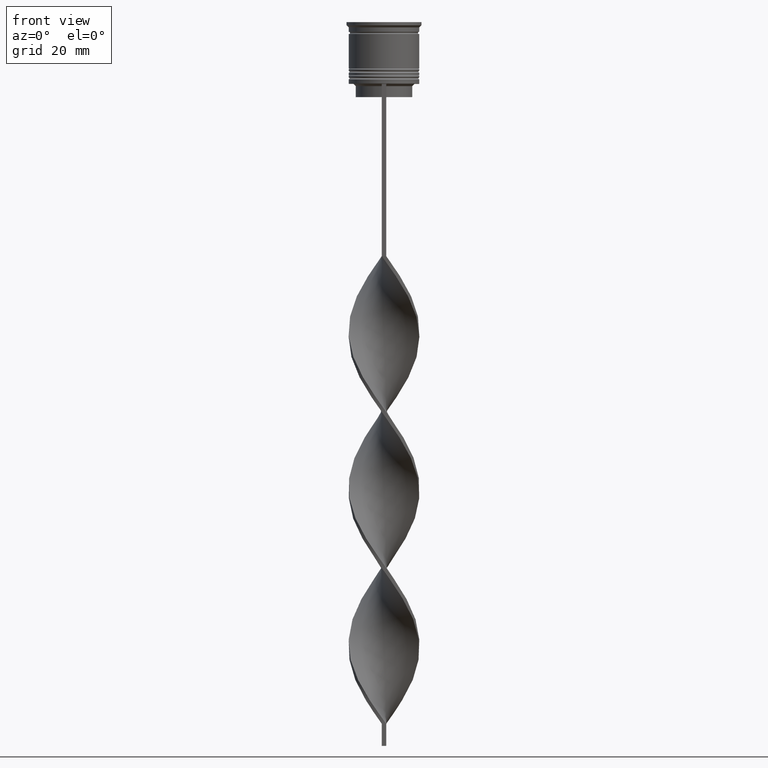
[diagram: clean part render]
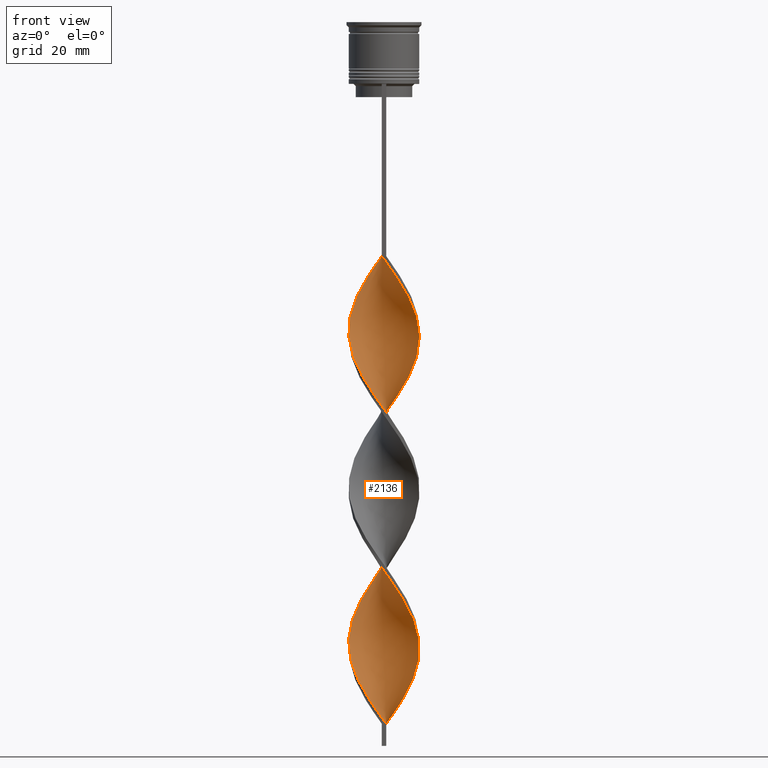
[diagram: same view with one face highlighted and labeled with its STEP entity id]
A machine part, front view. The second image highlights one B-rep face of the part: STEP entity #2136.
In plain terms, the highlighted face is a freeform B-spline surface patch.
Its self-contained STEP definition (entity closure, byte-faithful):
#7 = CARTESIAN_POINT ( 'NONE',  ( 2.963900771692545177, 7.495002038555971247, -84.79999999999998295 ) ) ;
#15 = CARTESIAN_POINT ( 'NONE',  ( -7.763755626116591202, 2.164223167868974951, -103.6444444444444457 ) ) ;
#30 = CARTESIAN_POINT ( 'NONE',  ( -0.4999999999999998890, 7.999999999999996447, -53.00000000000000000 ) ) ;
#31 = CARTESIAN_POINT ( 'NONE',  ( 5.008911780959354410, -6.314314381860031133, -131.9111111111111256 ) ) ;
#48 =( BOUNDED_CURVE ( )  B_SPLINE_CURVE ( 2, ( #30, #2619, #1235, #334, #70, #681, #967, #950, #2912, #389, #1807, #317, #2947, #2051, #2104, #1178, #350, #2387, #3189, #2334, #1513, #2654, #3212, #603, #2370, #1548, #3555, #1250, #2968, #2317, #1754, #3230, #371, #1534, #1480, #3538, #3484, #1196, #1830, #2931, #3500, #2989, #895, #626, #1773, #1496, #2635, #49, #1215, #2352, #3521, #936, #2072, #702, #2405, #1851, #3575, #991, #2129, #408, #1267, #1567, #104, #3290, #3007, #3126, #1392, #1618, #2788, #3341, #2498, #2197, #3358, #160, #787, #1060, #217, #478, #2178, #1076, #773, #3397, #232, #2529, #1655, #1918, #1091, #757, #3663, #1672, #1934 ),
 .UNSPECIFIED., .F., .T. ) 
 B_SPLINE_CURVE_WITH_KNOTS ( ( 3, 2, 2, 2, 2, 2, 2, 2, 2, 2, 2, 2, 2, 2, 2, 2, 2, 2, 2, 2, 2, 2, 2, 2, 2, 2, 2, 2, 2, 2, 2, 2, 2, 2, 2, 2, 2, 2, 2, 2, 2, 2, 2, 2, 2, 3 ),
 ( 0.000000000000000000, 0.01666666666666666644, 0.03333333333333333287, 0.05000000000000000971, 0.06666666666666666574, 0.08333333333333332871, 0.1000000000000000194, 0.1166666666666666546, 0.1333333333333333315, 0.1499999999999999944, 0.1666666666666666574, 0.1833333333333333204, 0.2000000000000000389, 0.2166666666666666741, 0.2333333333333333093, 0.2500000000000000000, 0.2666666666666666630, 0.2833333333333333259, 0.2999999999999999889, 0.3166666666666666519, 0.3333333333333333148, 0.3499999999999999223, 0.3666666666666666408, 0.3833333333333333592, 0.4000000000000000777, 0.4166666666666666852, 0.4333333333333333481, 0.4500000000000000111, 0.4666666666666666186, 0.4833333333333333370, 0.5000000000000000000, 0.5166666666666667185, 0.5333333333333333259, 0.5500000000000000444, 0.5666666666666666519, 0.5833333333333333703, 0.5999999999999999778, 0.6166666666666666963, 0.6333333333333333037, 0.6500000000000000222, 0.6666666666666666297, 0.6833333333333332371, 0.6999999999999998446, 0.7166666666666666741, 0.7333333333333332815, 0.7500000000000000000 ),
 .UNSPECIFIED. ) 
 CURVE ( )  GEOMETRIC_REPRESENTATION_ITEM ( )  RATIONAL_B_SPLINE_CURVE ( ( 1.000000000000000000, 0.9945218953682732899, 1.000000000000000000, 0.9945218953682732899, 1.000000000000000000, 0.9945218953682732899, 1.000000000000000000, 0.9945218953682732899, 1.000000000000000000, 0.9945218953682732899, 1.000000000000000000, 0.9945218953682732899, 1.000000000000000000, 0.9945218953682732899, 1.000000000000000000, 0.9945218953682732899, 1.000000000000000000, 0.9945218953682732899, 1.000000000000000000, 0.9945218953682732899, 1.000000000000000000, 0.9945218953682732899, 1.000000000000000000, 0.9945218953682732899, 1.000000000000000000, 0.9945218953682732899, 1.000000000000000000, 0.9945218953682732899, 1.000000000000000000, 0.9945218953682732899, 1.000000000000000000, 0.9945218953682732899, 1.000000000000000000, 0.9945218953682732899, 1.000000000000000000, 0.9945218953682732899, 1.000000000000000000, 0.9945218953682732899, 1.000000000000000000, 0.9945218953682732899, 1.000000000000000000, 0.9945218953682732899, 1.000000000000000000, 0.9945218953682732899, 1.000000000000000000, 0.9945218953682732899, 1.000000000000000000, 0.9945218953682732899, 1.000000000000000000, 0.9945218953682732899, 1.000000000000000000, 0.9945218953682732899, 1.000000000000000000, 0.9945218953682732899, 1.000000000000000000, 0.9945218953682732899, 1.000000000000000000, 0.9945218953682732899, 1.000000000000000000, 0.9945218953682732899, 1.000000000000000000, 0.9945218953682732899, 1.000000000000000000, 0.9945218953682732899, 1.000000000000000000, 0.9945218953682732899, 1.000000000000000000, 0.9945218953682732899, 1.000000000000000000, 0.9945218953682732899, 1.000000000000000000, 0.9945218953682732899, 1.000000000000000000, 0.9945218953682732899, 1.000000000000000000, 0.9945218953682732899, 1.000000000000000000, 0.9945218953682732899, 1.000000000000000000, 0.9945218953682732899, 1.000000000000000000, 0.9945218953682732899, 1.000000000000000000, 0.9945218953682732899, 1.000000000000000000, 0.9945218953682732899, 1.000000000000000000, 0.9945218953682732899, 1.000000000000000000, 0.9945218953682732899, 1.000000000000000000 ) ) 
 REPRESENTATION_ITEM ( '' )  );
#49 = CARTESIAN_POINT ( 'NONE',  ( 7.763755626116586761, 2.164223167868963404, -108.3555555555555543 ) ) ;
#70 = CARTESIAN_POINT ( 'NONE',  ( -3.710665873427700490, 7.104995339602903748, -57.71111111111110858 ) ) ;
#104 = CARTESIAN_POINT ( 'NONE',  ( -2.152367326908976697, 7.721224960461563036, -126.0222222222222257 ) ) ;
#105 = CARTESIAN_POINT ( 'NONE',  ( 4.457430975162866460, 6.714988640649846019, -153.1111111111111143 ) ) ;
#106 = CARTESIAN_POINT ( 'NONE',  ( -7.903910931312363886, 1.333488653825370962, -104.8222222222222229 ) ) ;
#128 = CARTESIAN_POINT ( 'NONE',  ( -6.803297758105507853, 4.321446859207494384, -63.60000000000000853 ) ) ;
#150 = CARTESIAN_POINT ( 'NONE',  ( -6.678203230275511437, 4.433012701892224072, -100.1111111111111143 ) ) ;
#160 = CARTESIAN_POINT ( 'NONE',  ( -7.972812552651890705, 1.180687656695940779, -138.9777777777777885 ) ) ;
#169 = CARTESIAN_POINT ( 'NONE',  ( 5.610593300639727055, -5.724617263609565576, -133.0888888888889028 ) ) ;
#173 = CARTESIAN_POINT ( 'NONE',  ( 0.3408338821254121020, -8.052552117632842510, -54.17777777777777715 ) ) ;
#189 = CARTESIAN_POINT ( 'NONE',  ( -7.144131640230920510, 3.731105258425349014, -101.2888888888888914 ) ) ;
#217 = CARTESIAN_POINT ( 'NONE',  ( -7.903910931312356780, -1.333488653825362746, -142.5111111111111200 ) ) ;
#219 = CARTESIAN_POINT ( 'NONE',  ( 5.106790515527261931, 6.178243328853344707, -81.26666666666666572 ) ) ;
#228 = CARTESIAN_POINT ( 'NONE',  ( 0.3408338821254181528, 8.052552117632835404, -122.4888888888888800 ) ) ;
#232 = CARTESIAN_POINT ( 'NONE',  ( -5.610593300639724390, -5.724617263609558471, -149.5777777777777828 ) ) ;
#243 = CARTESIAN_POINT ( 'NONE',  ( 3.586635261345271886, -7.217742780431606775, -58.88888888888888573 ) ) ;
#246 = CARTESIAN_POINT ( 'NONE',  ( -3.710665873427700490, 7.104995339602903748, -128.3777777777777942 ) ) ;
#263 = CARTESIAN_POINT ( 'NONE',  ( -0.4999999999999998890, -8.000000000000003553, -123.6666666666666714 ) ) ;
#265 = CARTESIAN_POINT ( 'NONE',  ( 7.178203230275505220, -3.566987298107782589, -100.1111111111111143 ) ) ;
#274 = CARTESIAN_POINT ( 'NONE',  ( 8.044066236508134793, -0.5027541397817586466, -70.66666666666667140 ) ) ;
#280 = CARTESIAN_POINT ( 'NONE',  ( 6.803297758105513182, 4.321446859207497937, -148.4000000000000057 ) ) ;
#283 = CARTESIAN_POINT ( 'NONE',  ( 6.678203230275510549, 4.433012701892212526, -111.8888888888888999 ) ) ;
#290 = CARTESIAN_POINT ( 'NONE',  ( 0.5000000000000008882, 8.000000000000003553, -88.33333333333332860 ) ) ;
#297 = CARTESIAN_POINT ( 'NONE',  ( 6.212274820320101476, -5.134920145359100019, -134.2666666666666515 ) ) ;
#300 = CARTESIAN_POINT ( 'NONE',  ( -7.453943633173752303, -2.947664213147154655, -74.20000000000000284 ) ) ;
#317 = CARTESIAN_POINT ( 'NONE',  ( -7.553108702445505251, 2.812527737008064577, -65.95555555555556282 ) ) ;
#318 = CARTESIAN_POINT ( 'NONE',  ( -7.178203230275514990, -3.566987298107776816, -111.8888888888888999 ) ) ;
#334 = CARTESIAN_POINT ( 'NONE',  ( -2.963900771692542069, 7.495002038555965029, -56.53333333333332433 ) ) ;
#335 = CARTESIAN_POINT ( 'NONE',  ( -5.106790515527262819, -6.178243328853344707, -116.6000000000000085 ) ) ;
#338 = CARTESIAN_POINT ( 'NONE',  ( -3.586635261345270997, -7.217742780431598781, -153.1111111111110858 ) ) ;
#350 = CARTESIAN_POINT ( 'NONE',  ( -7.903910931312356780, -1.333488653825362746, -71.84444444444444855 ) ) ;
#371 = CARTESIAN_POINT ( 'NONE',  ( 2.152367326908974476, -7.721224960461563036, -90.68888888888888289 ) ) ;
#389 = CARTESIAN_POINT ( 'NONE',  ( -6.803297758105507853, 4.321446859207494384, -63.60000000000000142 ) ) ;
#392 = CARTESIAN_POINT ( 'NONE',  ( -7.972812552651898699, -1.180687656695935006, -108.3555555555555543 ) ) ;
#406 = CARTESIAN_POINT ( 'NONE',  ( -5.610593300639724390, -5.724617263609558471, -149.5777777777777828 ) ) ;
#408 = CARTESIAN_POINT ( 'NONE',  ( 0.3408338821254181528, 8.052552117632835404, -122.4888888888888800 ) ) ;
#410 = CARTESIAN_POINT ( 'NONE',  ( -5.106790515527257490, 6.178243328853340266, -60.06666666666666288 ) ) ;
#432 = CARTESIAN_POINT ( 'NONE',  ( -7.553108702445506140, 2.812527737008064133, -65.95555555555556282 ) ) ;
#444 = ORIENTED_EDGE ( 'NONE', *, *, #519, .F. ) ;
#452 = CARTESIAN_POINT ( 'NONE',  ( -7.762960627548706860, -1.996607696852001901, -109.5333333333333456 ) ) ;
#463 =( BOUNDED_SURFACE ( )  B_SPLINE_SURFACE ( 1, 2, ( 
 ( #3422, #1640, #834, #2811, #538, #1691, #2848, #2555, #1078, #1132, #2868, #3440, #1990, #561, #2214, #274, #1433, #3738, #1149, #775, #3377, #1939, #3095, #1656, #219, #1378, #2514, #7, #1452, #3168, #290, #580, #1728, #2883, #2291, #2594, #3460, #875, #2012, #744, #150, #189, #3579, #1029, #106, #1892, #3049, #392, #452, #993, #2131, #2165, #1292, #3328, #1624, #1907, #1609, #1269, #1350, #2759, #2409, #1311, #3010, #3062, #2107, #1592, #3349, #1551, #169, #470, #1010, #3598, #2148, #3028, #683, #2775, #3616, #2446, #2739, #1328, #2187, #2694, #1871, #2465, #3293, #3272, #3634, #3653, #3308, #2487, #1048 ),
 ( #1833, #704, #763, #2430, #2992, #1854, #410, #1569, #2716, #128, #721, #432, #3731, #1983, #1442, #3433, #550, #2891, #300, #1951, #2546, #827, #1465, #2248, #2524, #1704, #513, #1388, #807, #588, #3471, #883, #1667, #3674, #2282, #1088, #1410, #2226, #2860, #864, #265, #1969, #1736, #3106, #2583, #2837, #3749, #3391, #1107, #3694, #283, #1142, #3413, #1720, #3123, #3714, #531, #2021, #2821, #228, #1683, #1162, #3449, #2002, #246, #1426, #1124, #2265, #844, #3138, #2564, #3160, #572, #2875, #2304, #3176, #2934, #898, #3573, #2055, #3288, #2127, #406, #3305, #1182, #338, #1025, #988, #1499, #717, #3192 ) ),
 .UNSPECIFIED., .F., .F., .F. ) 
 B_SPLINE_SURFACE_WITH_KNOTS ( ( 2, 2 ),
 ( 3, 2, 2, 2, 2, 2, 2, 2, 2, 2, 2, 2, 2, 2, 2, 2, 2, 2, 2, 2, 2, 2, 2, 2, 2, 2, 2, 2, 2, 2, 2, 2, 2, 2, 2, 2, 2, 2, 2, 2, 2, 2, 2, 2, 2, 3 ),
 ( 0.000000000000000000, 1.000000000000000000 ),
 ( 0.000000000000000000, 0.01666666666666666644, 0.03333333333333333287, 0.05000000000000000278, 0.06666666666666666574, 0.08333333333333332871, 0.1000000000000000056, 0.1166666666666666685, 0.1333333333333333315, 0.1499999999999999944, 0.1666666666666666574, 0.1833333333333333204, 0.2000000000000000111, 0.2166666666666666741, 0.2333333333333333370, 0.2500000000000000000, 0.2666666666666666630, 0.2833333333333333259, 0.2999999999999999889, 0.3166666666666666519, 0.3333333333333333148, 0.3499999999999999778, 0.3666666666666666408, 0.3833333333333333592, 0.4000000000000000222, 0.4166666666666666852, 0.4333333333333333481, 0.4500000000000000111, 0.4666666666666666741, 0.4833333333333333370, 0.5000000000000000000, 0.5166666666666667185, 0.5333333333333333259, 0.5500000000000000444, 0.5666666666666666519, 0.5833333333333333703, 0.5999999999999999778, 0.6166666666666666963, 0.6333333333333333037, 0.6500000000000000222, 0.6666666666666666297, 0.6833333333333333481, 0.6999999999999999556, 0.7166666666666666741, 0.7333333333333332815, 0.7500000000000000000 ),
 .UNSPECIFIED. ) 
 GEOMETRIC_REPRESENTATION_ITEM ( )  RATIONAL_B_SPLINE_SURFACE ( (
 ( 1.000000000000000000, 0.9945218953682732899, 1.000000000000000000, 0.9945218953682732899, 1.000000000000000000, 0.9945218953682732899, 1.000000000000000000, 0.9945218953682732899, 1.000000000000000000, 0.9945218953682732899, 1.000000000000000000, 0.9945218953682732899, 1.000000000000000000, 0.9945218953682732899, 1.000000000000000000, 0.9945218953682732899, 1.000000000000000000, 0.9945218953682732899, 1.000000000000000000, 0.9945218953682732899, 1.000000000000000000, 0.9945218953682732899, 1.000000000000000000, 0.9945218953682732899, 1.000000000000000000, 0.9945218953682732899, 1.000000000000000000, 0.9945218953682732899, 1.000000000000000000, 0.9945218953682732899, 1.000000000000000000, 0.9945218953682732899, 1.000000000000000000, 0.9945218953682732899, 1.000000000000000000, 0.9945218953682732899, 1.000000000000000000, 0.9945218953682732899, 1.000000000000000000, 0.9945218953682732899, 1.000000000000000000, 0.9945218953682732899, 1.000000000000000000, 0.9945218953682732899, 1.000000000000000000, 0.9945218953682732899, 1.000000000000000000, 0.9945218953682732899, 1.000000000000000000, 0.9945218953682732899, 1.000000000000000000, 0.9945218953682732899, 1.000000000000000000, 0.9945218953682732899, 1.000000000000000000, 0.9945218953682732899, 1.000000000000000000, 0.9945218953682732899, 1.000000000000000000, 0.9945218953682732899, 1.000000000000000000, 0.9945218953682732899, 1.000000000000000000, 0.9945218953682732899, 1.000000000000000000, 0.9945218953682732899, 1.000000000000000000, 0.9945218953682732899, 1.000000000000000000, 0.9945218953682732899, 1.000000000000000000, 0.9945218953682732899, 1.000000000000000000, 0.9945218953682732899, 1.000000000000000000, 0.9945218953682732899, 1.000000000000000000, 0.9945218953682732899, 1.000000000000000000, 0.9945218953682732899, 1.000000000000000000, 0.9945218953682732899, 1.000000000000000000, 0.9945218953682732899, 1.000000000000000000, 0.9945218953682732899, 1.000000000000000000, 0.9945218953682732899, 1.000000000000000000, 0.9945218953682732899, 1.000000000000000000),
 ( 1.000000000000000000, 0.9945218953682732899, 1.000000000000000000, 0.9945218953682732899, 1.000000000000000000, 0.9945218953682732899, 1.000000000000000000, 0.9945218953682732899, 1.000000000000000000, 0.9945218953682732899, 1.000000000000000000, 0.9945218953682732899, 1.000000000000000000, 0.9945218953682732899, 1.000000000000000000, 0.9945218953682732899, 1.000000000000000000, 0.9945218953682732899, 1.000000000000000000, 0.9945218953682732899, 1.000000000000000000, 0.9945218953682732899, 1.000000000000000000, 0.9945218953682732899, 1.000000000000000000, 0.9945218953682732899, 1.000000000000000000, 0.9945218953682732899, 1.000000000000000000, 0.9945218953682732899, 1.000000000000000000, 0.9945218953682732899, 1.000000000000000000, 0.9945218953682732899, 1.000000000000000000, 0.9945218953682732899, 1.000000000000000000, 0.9945218953682732899, 1.000000000000000000, 0.9945218953682732899, 1.000000000000000000, 0.9945218953682732899, 1.000000000000000000, 0.9945218953682732899, 1.000000000000000000, 0.9945218953682732899, 1.000000000000000000, 0.9945218953682732899, 1.000000000000000000, 0.9945218953682732899, 1.000000000000000000, 0.9945218953682732899, 1.000000000000000000, 0.9945218953682732899, 1.000000000000000000, 0.9945218953682732899, 1.000000000000000000, 0.9945218953682732899, 1.000000000000000000, 0.9945218953682732899, 1.000000000000000000, 0.9945218953682732899, 1.000000000000000000, 0.9945218953682732899, 1.000000000000000000, 0.9945218953682732899, 1.000000000000000000, 0.9945218953682732899, 1.000000000000000000, 0.9945218953682732899, 1.000000000000000000, 0.9945218953682732899, 1.000000000000000000, 0.9945218953682732899, 1.000000000000000000, 0.9945218953682732899, 1.000000000000000000, 0.9945218953682732899, 1.000000000000000000, 0.9945218953682732899, 1.000000000000000000, 0.9945218953682732899, 1.000000000000000000, 0.9945218953682732899, 1.000000000000000000, 0.9945218953682732899, 1.000000000000000000, 0.9945218953682732899, 1.000000000000000000, 0.9945218953682732899, 1.000000000000000000) ) ) 
 REPRESENTATION_ITEM ( '' )  SURFACE ( )  );
#470 = CARTESIAN_POINT ( 'NONE',  ( 6.212274820320101476, -5.134920145359099131, -134.2666666666666231 ) ) ;
#478 = CARTESIAN_POINT ( 'NONE',  ( -7.763755626116585873, -2.164223167868968734, -143.6888888888888971 ) ) ;
#513 = CARTESIAN_POINT ( 'NONE',  ( -2.797120415785101954, -7.511731982678703012, -83.62222222222222001 ) ) ;
#519 = EDGE_CURVE ( 'NONE', #3421, #826, #2124, .T. ) ;
#531 = CARTESIAN_POINT ( 'NONE',  ( 2.797120415785105951, 7.511731982678701236, -118.9555555555555628 ) ) ;
#538 = CARTESIAN_POINT ( 'NONE',  ( 2.797120415785102399, -7.511731982678711006, -57.71111111111110858 ) ) ;
#545 = CARTESIAN_POINT ( 'NONE',  ( 7.178203230275513214, 3.566987298107780813, -76.55555555555555713 ) ) ;
#550 = CARTESIAN_POINT ( 'NONE',  ( -7.903910931312356780, -1.333488653825362746, -71.84444444444444855 ) ) ;
#561 = CARTESIAN_POINT ( 'NONE',  ( 7.763755626116591202, -2.164223167868972286, -68.31111111111111711 ) ) ;
#569 = CARTESIAN_POINT ( 'NONE',  ( 7.762960627548706860, 1.996607696852002789, -74.20000000000000284 ) ) ;
#572 = CARTESIAN_POINT ( 'NONE',  ( -7.762960627548698866, 1.996607696852001457, -137.8000000000000114 ) ) ;
#580 = CARTESIAN_POINT ( 'NONE',  ( -0.3408338821254087714, 8.052552117632844286, -89.51111111111111995 ) ) ;
#586 = CARTESIAN_POINT ( 'NONE',  ( 2.963900771692545177, 7.495002038555971247, -84.79999999999998295 ) ) ;
#588 = CARTESIAN_POINT ( 'NONE',  ( -0.3408338821254136564, -8.052552117632835404, -87.15555555555553724 ) ) ;
#603 = CARTESIAN_POINT ( 'NONE',  ( -5.008911780959351745, -6.314314381860024028, -80.08888888888888857 ) ) ;
#604 = CARTESIAN_POINT ( 'NONE',  ( 0.3408338821254121020, -8.052552117632842510, -124.8444444444444343 ) ) ;
#626 = CARTESIAN_POINT ( 'NONE',  ( 7.972812552651890705, -1.180687656695943444, -103.6444444444444457 ) ) ;
#627 = CARTESIAN_POINT ( 'NONE',  ( -0.3408338821254087714, 8.052552117632844286, -89.51111111111110574 ) ) ;
#681 = CARTESIAN_POINT ( 'NONE',  ( -4.457430975162859355, 6.714988640649843354, -58.88888888888888573 ) ) ;
#683 = CARTESIAN_POINT ( 'NONE',  ( 7.903910931312363886, -1.333488653825366521, -140.1555555555555657 ) ) ;
#702 = CARTESIAN_POINT ( 'NONE',  ( 5.008911780959355298, 6.314314381860021363, -115.4222222222222314 ) ) ;
#704 = CARTESIAN_POINT ( 'NONE',  ( -1.340833882125411103, 7.947447882367156602, -54.17777777777777715 ) ) ;
#717 = CARTESIAN_POINT ( 'NONE',  ( -0.3408338821254136564, -8.052552117632835404, -157.8222222222221660 ) ) ;
#721 = CARTESIAN_POINT ( 'NONE',  ( -7.178203230275506108, 3.566987298107779925, -64.77777777777778567 ) ) ;
#744 = CARTESIAN_POINT ( 'NONE',  ( -6.212274820320100588, 5.134920145359100019, -98.93333333333332291 ) ) ;
#757 = CARTESIAN_POINT ( 'NONE',  ( -2.007605570224932023, -7.805721184925808132, -155.4666666666666686 ) ) ;
#763 = CARTESIAN_POINT ( 'NONE',  ( -2.152367326908976697, 7.721224960461563036, -55.35555555555555429 ) ) ;
#767 = CARTESIAN_POINT ( 'NONE',  ( 7.903910931312363886, -1.333488653825366521, -69.48888888888889426 ) ) ;
#771 = ORIENTED_EDGE ( 'NONE', *, *, #1191, .F. ) ;
#773 = CARTESIAN_POINT ( 'NONE',  ( -6.678203230275506996, -4.433012701892216079, -147.2222222222222285 ) ) ;
#775 = CARTESIAN_POINT ( 'NONE',  ( 7.553108702445513245, 2.812527737008064577, -75.37777777777777999 ) ) ;
#783 = CARTESIAN_POINT ( 'NONE',  ( 1.174219726175172562, -7.929136651279328873, -55.35555555555555429 ) ) ;
#787 = CARTESIAN_POINT ( 'NONE',  ( -8.008439394580010529, 0.3389667584570925096, -140.1555555555555657 ) ) ;
#807 = CARTESIAN_POINT ( 'NONE',  ( -1.174219726175174561, -7.929136651279319992, -85.97777777777777430 ) ) ;
#826 = VERTEX_POINT ( 'NONE', #3405 ) ;
#827 = CARTESIAN_POINT ( 'NONE',  ( -6.212274820320096147, -5.134920145359094690, -77.73333333333333428 ) ) ;
#834 = CARTESIAN_POINT ( 'NONE',  ( 1.174219726175172562, -7.929136651279328873, -55.35555555555555429 ) ) ;
#842 = CARTESIAN_POINT ( 'NONE',  ( 7.453943633173757632, -2.947664213147156875, -137.8000000000000114 ) ) ;
#844 = CARTESIAN_POINT ( 'NONE',  ( -6.279723906998579963, 4.981472438132166225, -133.0888888888889028 ) ) ;
#860 = CARTESIAN_POINT ( 'NONE',  ( 7.972812552651897811, 1.180687656695939447, -143.6888888888888971 ) ) ;
#864 = CARTESIAN_POINT ( 'NONE',  ( 6.803297758105506965, -4.321446859207495272, -98.93333333333332291 ) ) ;
#875 = CARTESIAN_POINT ( 'NONE',  ( -5.008911780959350857, 6.314314381860031133, -96.57777777777775441 ) ) ;
#880 = CARTESIAN_POINT ( 'NONE',  ( -0.4999999999999998890, 7.999999999999996447, -53.00000000000000000 ) ) ;
#881 = CARTESIAN_POINT ( 'NONE',  ( 7.762960627548706860, 1.996607696852002789, -144.8666666666666742 ) ) ;
#883 = CARTESIAN_POINT ( 'NONE',  ( 1.340833882125408216, -7.947447882367158378, -89.51111111111111995 ) ) ;
#895 = CARTESIAN_POINT ( 'NONE',  ( 7.762960627548698866, -1.996607696852002345, -102.4666666666666686 ) ) ;
#896 = CARTESIAN_POINT ( 'NONE',  ( -3.710665873427708927, -7.104995339602907301, -118.9555555555555628 ) ) ;
#898 = CARTESIAN_POINT ( 'NONE',  ( -7.763755626116584985, -2.164223167868968734, -143.6888888888888971 ) ) ;
#913 = CARTESIAN_POINT ( 'NONE',  ( 2.007605570224933356, -7.805721184925815237, -127.2000000000000028 ) ) ;
#936 = CARTESIAN_POINT ( 'NONE',  ( 6.212274820320097035, 5.134920145359093802, -113.0666666666666629 ) ) ;
#950 = CARTESIAN_POINT ( 'NONE',  ( -5.756150055891653849, 5.641498017056839842, -61.24444444444443292 ) ) ;
#967 = CARTESIAN_POINT ( 'NONE',  ( -5.106790515527257490, 6.178243328853340266, -60.06666666666666288 ) ) ;
#988 = CARTESIAN_POINT ( 'NONE',  ( -2.007605570224932023, -7.805721184925808132, -155.4666666666666686 ) ) ;
#991 = CARTESIAN_POINT ( 'NONE',  ( 2.007605570224933356, 7.805721184925808132, -120.1333333333333400 ) ) ;
#992 = CARTESIAN_POINT ( 'NONE',  ( 0.5000000000000008882, 8.000000000000003553, -159.0000000000000000 ) ) ;
#993 = CARTESIAN_POINT ( 'NONE',  ( -7.553108702445514133, -2.812527737008061912, -110.7111111111110944 ) ) ;
#1010 = CARTESIAN_POINT ( 'NONE',  ( 6.678203230275512325, -4.433012701892221408, -135.4444444444444571 ) ) ;
#1025 = CARTESIAN_POINT ( 'NONE',  ( -2.797120415785101954, -7.511731982678703012, -154.2888888888888914 ) ) ;
#1029 = CARTESIAN_POINT ( 'NONE',  ( -7.763755626116591202, 2.164223167868974951, -103.6444444444444457 ) ) ;
#1048 = CARTESIAN_POINT ( 'NONE',  ( 0.5000000000000008882, 8.000000000000003553, -159.0000000000000000 ) ) ;
#1054 = CARTESIAN_POINT ( 'NONE',  ( 6.678203230275512325, -4.433012701892221408, -64.77777777777778567 ) ) ;
#1056 = CARTESIAN_POINT ( 'NONE',  ( 0.5000000000000008882, 8.000000000000003553, -159.0000000000000000 ) ) ;
#1060 = CARTESIAN_POINT ( 'NONE',  ( -8.044066236508127687, -0.5027541397817575364, -141.3333333333333428 ) ) ;
#1076 = CARTESIAN_POINT ( 'NONE',  ( -7.144131640230919622, -3.731105258425339244, -146.0444444444444230 ) ) ;
#1078 = CARTESIAN_POINT ( 'NONE',  ( 5.610593300639727055, -5.724617263609565576, -62.42222222222221717 ) ) ;
#1088 = CARTESIAN_POINT ( 'NONE',  ( 4.457430975162857578, -6.714988640649844243, -94.22222222222221433 ) ) ;
#1091 = CARTESIAN_POINT ( 'NONE',  ( -2.797120415785101954, -7.511731982678703012, -154.2888888888888914 ) ) ;
#1107 = CARTESIAN_POINT ( 'NONE',  ( 7.453943633173752303, 2.947664213147153767, -109.5333333333333456 ) ) ;
#1121 = CARTESIAN_POINT ( 'NONE',  ( 1.174219726175172562, -7.929136651279328873, -126.0222222222222257 ) ) ;
#1124 = CARTESIAN_POINT ( 'NONE',  ( -5.106790515527257490, 6.178243328853340266, -130.7333333333333485 ) ) ;
#1132 = CARTESIAN_POINT ( 'NONE',  ( 6.212274820320101476, -5.134920145359099131, -63.60000000000000853 ) ) ;
#1140 = CARTESIAN_POINT ( 'NONE',  ( 5.610593300639727055, -5.724617263609565576, -133.0888888888889028 ) ) ;
#1142 = CARTESIAN_POINT ( 'NONE',  ( 6.212274820320097035, 5.134920145359093802, -113.0666666666666487 ) ) ;
#1149 = CARTESIAN_POINT ( 'NONE',  ( 7.762960627548706860, 1.996607696852002789, -74.20000000000000284 ) ) ;
#1157 = CARTESIAN_POINT ( 'NONE',  ( -7.972812552651899587, -1.180687656695935006, -108.3555555555555543 ) ) ;
#1162 = CARTESIAN_POINT ( 'NONE',  ( -1.340833882125411103, 7.947447882367156602, -124.8444444444444343 ) ) ;
#1178 = CARTESIAN_POINT ( 'NONE',  ( -8.044066236508127687, -0.5027541397817575364, -70.66666666666667140 ) ) ;
#1179 = CARTESIAN_POINT ( 'NONE',  ( 3.710665873427705375, 7.104995339602909077, -83.62222222222222001 ) ) ;
#1182 = CARTESIAN_POINT ( 'NONE',  ( -4.297773521152310039, -6.766028581145813625, -151.9333333333333371 ) ) ;
#1191 = EDGE_CURVE ( 'NONE', #826, #3558, #1397, .T. ) ;
#1196 = CARTESIAN_POINT ( 'NONE',  ( 5.756150055891652073, -5.641498017056840730, -96.57777777777776862 ) ) ;
#1197 = CARTESIAN_POINT ( 'NONE',  ( 0.5000000000000008882, 8.000000000000003553, -88.33333333333332860 ) ) ;
#1215 = CARTESIAN_POINT ( 'NONE',  ( 7.453943633173752303, 2.947664213147153767, -109.5333333333333456 ) ) ;
#1235 = CARTESIAN_POINT ( 'NONE',  ( -2.152367326908976697, 7.721224960461563036, -55.35555555555555429 ) ) ;
#1250 = CARTESIAN_POINT ( 'NONE',  ( -2.007605570224932023, -7.805721184925808132, -84.79999999999998295 ) ) ;
#1267 = CARTESIAN_POINT ( 'NONE',  ( -0.4999999999999998890, 7.999999999999996447, -123.6666666666666714 ) ) ;
#1269 = CARTESIAN_POINT ( 'NONE',  ( -2.963900771692546510, -7.495002038555971247, -120.1333333333333400 ) ) ;
#1292 = CARTESIAN_POINT ( 'NONE',  ( -6.279723906998587957, -4.981472438132167113, -114.2444444444444542 ) ) ;
#1311 = CARTESIAN_POINT ( 'NONE',  ( 0.3408338821254121020, -8.052552117632842510, -124.8444444444444343 ) ) ;
#1328 = CARTESIAN_POINT ( 'NONE',  ( 7.553108702445513245, 2.812527737008064577, -146.0444444444443945 ) ) ;
#1350 = CARTESIAN_POINT ( 'NONE',  ( -2.152367326908982026, -7.721224960461567477, -121.3111111111111171 ) ) ;
#1355 = CARTESIAN_POINT ( 'NONE',  ( 7.972812552651897811, 1.180687656695939447, -73.02222222222221149 ) ) ;
#1378 = CARTESIAN_POINT ( 'NONE',  ( 4.457430975162865572, 6.714988640649846907, -82.44444444444444287 ) ) ;
#1388 = CARTESIAN_POINT ( 'NONE',  ( -2.007605570224932023, -7.805721184925808132, -84.79999999999998295 ) ) ;
#1392 = CARTESIAN_POINT ( 'NONE',  ( -5.106790515527257490, 6.178243328853340266, -130.7333333333333485 ) ) ;
#1397 = B_SPLINE_CURVE_WITH_KNOTS ( 'NONE', 3,
 ( #1056, #2194, #2765, #2494 ),
 .UNSPECIFIED., .F., .F.,
 ( 4, 4 ),
 ( 0.000000000000000000, 1.000000000000000000 ),
 .UNSPECIFIED. ) ;
#1410 = CARTESIAN_POINT ( 'NONE',  ( 5.106790515527256602, -6.178243328853340266, -95.40000000000000568 ) ) ;
#1424 = CARTESIAN_POINT ( 'NONE',  ( -8.008439394580017634, -0.3389667584570877357, -107.1777777777777771 ) ) ;
#1426 = CARTESIAN_POINT ( 'NONE',  ( -4.457430975162859355, 6.714988640649843354, -129.5555555555555429 ) ) ;
#1433 = CARTESIAN_POINT ( 'NONE',  ( 8.008439394580017634, 0.3389667584570904557, -71.84444444444444855 ) ) ;
#1440 = CARTESIAN_POINT ( 'NONE',  ( -5.610593300639726166, 5.724617263609566464, -97.75555555555555998 ) ) ;
#1442 = CARTESIAN_POINT ( 'NONE',  ( -8.008439394580010529, 0.3389667584570925096, -69.48888888888889426 ) ) ;
#1452 = CARTESIAN_POINT ( 'NONE',  ( 2.152367326908981138, 7.721224960461567477, -85.97777777777777430 ) ) ;
#1461 = CARTESIAN_POINT ( 'NONE',  ( 7.763755626116591202, -2.164223167868972286, -138.9777777777777885 ) ) ;
#1465 = CARTESIAN_POINT ( 'NONE',  ( -5.610593300639724390, -5.724617263609558471, -78.91111111111111143 ) ) ;
#1480 = CARTESIAN_POINT ( 'NONE',  ( 3.710665873427697381, -7.104995339602904636, -93.04444444444443718 ) ) ;
#1481 = CARTESIAN_POINT ( 'NONE',  ( -5.008911780959351745, 6.314314381860032022, -96.57777777777776862 ) ) ;
#1496 = CARTESIAN_POINT ( 'NONE',  ( 8.044066236508127687, 0.5027541397817566482, -106.0000000000000000 ) ) ;
#1497 = CARTESIAN_POINT ( 'NONE',  ( -4.297773521152312703, 6.766028581145818954, -95.40000000000000568 ) ) ;
#1499 = CARTESIAN_POINT ( 'NONE',  ( -1.174219726175174561, -7.929136651279319992, -156.6444444444444457 ) ) ;
#1513 = CARTESIAN_POINT ( 'NONE',  ( -6.678203230275506996, -4.433012701892216079, -76.55555555555555713 ) ) ;
#1534 = CARTESIAN_POINT ( 'NONE',  ( 2.963900771692541181, -7.495002038555965029, -91.86666666666666003 ) ) ;
#1548 = CARTESIAN_POINT ( 'NONE',  ( -3.586635261345271442, -7.217742780431598781, -82.44444444444444287 ) ) ;
#1551 = CARTESIAN_POINT ( 'NONE',  ( 5.008911780959353521, -6.314314381860030245, -131.9111111111111256 ) ) ;
#1567 = CARTESIAN_POINT ( 'NONE',  ( -1.340833882125411103, 7.947447882367156602, -124.8444444444444343 ) ) ;
#1569 = CARTESIAN_POINT ( 'NONE',  ( -5.756150055891653849, 5.641498017056839842, -61.24444444444443292 ) ) ;
#1590 = CARTESIAN_POINT ( 'NONE',  ( 5.756150055891660067, 5.641498017056842507, -150.7555555555555600 ) ) ;
#1592 = CARTESIAN_POINT ( 'NONE',  ( 3.586635261345271442, -7.217742780431606775, -129.5555555555555429 ) ) ;
#1609 = CARTESIAN_POINT ( 'NONE',  ( -3.710665873427708927, -7.104995339602907301, -118.9555555555555628 ) ) ;
#1618 = CARTESIAN_POINT ( 'NONE',  ( -5.756150055891653849, 5.641498017056839842, -131.9111111111111256 ) ) ;
#1624 = CARTESIAN_POINT ( 'NONE',  ( -5.106790515527262819, -6.178243328853344707, -116.6000000000000085 ) ) ;
#1628 = CARTESIAN_POINT ( 'NONE',  ( 8.008439394580017634, 0.3389667584570904557, -71.84444444444444855 ) ) ;
#1640 = CARTESIAN_POINT ( 'NONE',  ( 0.3408338821254121020, -8.052552117632842510, -54.17777777777777715 ) ) ;
#1655 = CARTESIAN_POINT ( 'NONE',  ( -4.297773521152310039, -6.766028581145813625, -151.9333333333333371 ) ) ;
#1656 = CARTESIAN_POINT ( 'NONE',  ( 5.756150055891660955, 5.641498017056843395, -80.08888888888890278 ) ) ;
#1667 = CARTESIAN_POINT ( 'NONE',  ( 2.152367326908974476, -7.721224960461563036, -90.68888888888888289 ) ) ;
#1672 = CARTESIAN_POINT ( 'NONE',  ( -0.3408338821254136564, -8.052552117632835404, -157.8222222222221944 ) ) ;
#1683 = CARTESIAN_POINT ( 'NONE',  ( -0.4999999999999998890, 7.999999999999996447, -123.6666666666666714 ) ) ;
#1691 = CARTESIAN_POINT ( 'NONE',  ( 3.586635261345271442, -7.217742780431606775, -58.88888888888889284 ) ) ;
#1701 = CARTESIAN_POINT ( 'NONE',  ( 5.756150055891660067, 5.641498017056842507, -80.08888888888888857 ) ) ;
#1704 = CARTESIAN_POINT ( 'NONE',  ( -3.586635261345270997, -7.217742780431598781, -82.44444444444444287 ) ) ;
#1718 = CARTESIAN_POINT ( 'NONE',  ( 7.553108702445512357, 2.812527737008065021, -146.0444444444444230 ) ) ;
#1720 = CARTESIAN_POINT ( 'NONE',  ( 5.008911780959354410, 6.314314381860021363, -115.4222222222222456 ) ) ;
#1728 = CARTESIAN_POINT ( 'NONE',  ( -1.174219726175170564, 7.929136651279328873, -90.68888888888888289 ) ) ;
#1734 = CARTESIAN_POINT ( 'NONE',  ( -2.007605570224932467, 7.805721184925816125, -91.86666666666666003 ) ) ;
#1736 = CARTESIAN_POINT ( 'NONE',  ( 7.762960627548698866, -1.996607696852002345, -102.4666666666666686 ) ) ;
#1754 = CARTESIAN_POINT ( 'NONE',  ( 0.4999999999999989453, -7.999999999999996447, -88.33333333333332860 ) ) ;
#1755 = CARTESIAN_POINT ( 'NONE',  ( -7.762960627548706860, -1.996607696852001901, -109.5333333333333456 ) ) ;
#1773 = CARTESIAN_POINT ( 'NONE',  ( 8.008439394580010529, -0.3389667584570969505, -104.8222222222222229 ) ) ;
#1774 = CARTESIAN_POINT ( 'NONE',  ( -5.756150055891663619, -5.641498017056838954, -115.4222222222222314 ) ) ;
#1807 = CARTESIAN_POINT ( 'NONE',  ( -7.178203230275506108, 3.566987298107779925, -64.77777777777778567 ) ) ;
#1830 = CARTESIAN_POINT ( 'NONE',  ( 6.279723906998579075, -4.981472438132168001, -97.75555555555555998 ) ) ;
#1831 = CARTESIAN_POINT ( 'NONE',  ( 3.710665873427705375, 7.104995339602909077, -154.2888888888888914 ) ) ;
#1833 = CARTESIAN_POINT ( 'NONE',  ( -0.4999999999999998890, 7.999999999999996447, -53.00000000000000000 ) ) ;
#1851 = CARTESIAN_POINT ( 'NONE',  ( 3.586635261345272330, 7.217742780431597893, -117.7777777777777857 ) ) ;
#1852 = CARTESIAN_POINT ( 'NONE',  ( 6.279723906998587069, 4.981472438132168001, -149.5777777777777828 ) ) ;
#1854 = CARTESIAN_POINT ( 'NONE',  ( -4.457430975162859355, 6.714988640649843354, -58.88888888888889284 ) ) ;
#1864 = DIRECTION ( 'NONE',  ( 0.000000000000000000, 1.000000000000000000, 0.000000000000000000 ) ) ;
#1871 = CARTESIAN_POINT ( 'NONE',  ( 6.279723906998587069, 4.981472438132168001, -149.5777777777777828 ) ) ;
#1892 = CARTESIAN_POINT ( 'NONE',  ( -8.044066236508134793, 0.5027541397817596458, -106.0000000000000000 ) ) ;
#1907 = CARTESIAN_POINT ( 'NONE',  ( -4.457430975162865572, -6.714988640649846019, -117.7777777777777999 ) ) ;
#1912 = CARTESIAN_POINT ( 'NONE',  ( 8.044066236508134793, -0.5027541397817586466, -70.66666666666667140 ) ) ;
#1918 = CARTESIAN_POINT ( 'NONE',  ( -3.586635261345271442, -7.217742780431598781, -153.1111111111111143 ) ) ;
#1928 = CARTESIAN_POINT ( 'NONE',  ( 2.007605570224933356, -7.805721184925815237, -56.53333333333332433 ) ) ;
#1934 = CARTESIAN_POINT ( 'NONE',  ( 0.4999999999999989453, -7.999999999999996447, -159.0000000000000000 ) ) ;
#1939 = CARTESIAN_POINT ( 'NONE',  ( 6.803297758105512294, 4.321446859207497937, -77.73333333333333428 ) ) ;
#1951 = CARTESIAN_POINT ( 'NONE',  ( -7.144131640230918734, -3.731105258425338800, -75.37777777777777999 ) ) ;
#1969 = CARTESIAN_POINT ( 'NONE',  ( 7.553108702445504363, -2.812527737008069462, -101.2888888888888914 ) ) ;
#1981 = CARTESIAN_POINT ( 'NONE',  ( -4.457430975162866460, -6.714988640649845131, -117.7777777777777857 ) ) ;
#1983 = CARTESIAN_POINT ( 'NONE',  ( -7.972812552651889817, 1.180687656695941001, -68.31111111111111711 ) ) ;
#1990 = CARTESIAN_POINT ( 'NONE',  ( 7.453943633173757632, -2.947664213147156875, -67.13333333333333997 ) ) ;
#1999 = CARTESIAN_POINT ( 'NONE',  ( 6.678203230275512325, -4.433012701892221408, -135.4444444444444571 ) ) ;
#2002 = CARTESIAN_POINT ( 'NONE',  ( -2.963900771692542513, 7.495002038555964141, -127.2000000000000171 ) ) ;
#2012 = CARTESIAN_POINT ( 'NONE',  ( -5.610593300639726166, 5.724617263609566464, -97.75555555555555998 ) ) ;
#2018 = CARTESIAN_POINT ( 'NONE',  ( -7.144131640230921398, 3.731105258425349014, -101.2888888888888914 ) ) ;
#2021 = CARTESIAN_POINT ( 'NONE',  ( 2.007605570224933356, 7.805721184925808132, -120.1333333333333400 ) ) ;
#2034 = CARTESIAN_POINT ( 'NONE',  ( 7.553108702445512357, 2.812527737008065021, -75.37777777777777999 ) ) ;
#2051 = CARTESIAN_POINT ( 'NONE',  ( -7.972812552651890705, 1.180687656695940779, -68.31111111111111711 ) ) ;
#2052 = CARTESIAN_POINT ( 'NONE',  ( 7.144131640230924063, -3.731105258425344129, -136.6222222222222342 ) ) ;
#2055 = CARTESIAN_POINT ( 'NONE',  ( -7.144131640230918734, -3.731105258425338800, -146.0444444444443945 ) ) ;
#2072 = CARTESIAN_POINT ( 'NONE',  ( 5.610593300639725278, 5.724617263609557583, -114.2444444444444542 ) ) ;
#2104 = CARTESIAN_POINT ( 'NONE',  ( -8.008439394580010529, 0.3389667584570925096, -69.48888888888889426 ) ) ;
#2105 = CARTESIAN_POINT ( 'NONE',  ( 2.152367326908981138, 7.721224960461567477, -156.6444444444444457 ) ) ;
#2107 = CARTESIAN_POINT ( 'NONE',  ( 2.797120415785102399, -7.511731982678711006, -128.3777777777777942 ) ) ;
#2124 =( BOUNDED_CURVE ( )  B_SPLINE_CURVE ( 2, ( #3409, #173, #783, #1928, #2834, #243, #3712, #2169, #2470, #3639, #1054, #2192, #2803, #3353, #767, #1912, #1628, #1355, #569, #2034, #545, #2581, #2913, #1701, #3174, #2335, #1179, #586, #2932, #2301, #1197, #627, #2636, #1734, #3430, #3157, #1497, #1481, #1440, #3190, #3468, #2018, #2602, #15, #2889, #3729, #1424, #1157, #1755, #2280, #318, #3446, #2318, #1774, #335, #1981, #896, #3746, #3485, #2856, #263, #604, #1121, #913, #2620, #2561, #2262, #31, #1140, #297, #1999, #2052, #842, #1461, #3501, #3135, #3213, #860, #881, #1718, #2873, #280, #1852, #1590, #2692, #105, #1831, #3291, #2105, #2130, #992 ),
 .UNSPECIFIED., .F., .T. ) 
 B_SPLINE_CURVE_WITH_KNOTS ( ( 3, 2, 2, 2, 2, 2, 2, 2, 2, 2, 2, 2, 2, 2, 2, 2, 2, 2, 2, 2, 2, 2, 2, 2, 2, 2, 2, 2, 2, 2, 2, 2, 2, 2, 2, 2, 2, 2, 2, 2, 2, 2, 2, 2, 2, 3 ),
 ( 0.000000000000000000, 0.01666666666666666644, 0.03333333333333333287, 0.05000000000000000971, 0.06666666666666666574, 0.08333333333333332871, 0.1000000000000000194, 0.1166666666666666546, 0.1333333333333333315, 0.1499999999999999944, 0.1666666666666666574, 0.1833333333333333204, 0.2000000000000000389, 0.2166666666666666741, 0.2333333333333333093, 0.2500000000000000000, 0.2666666666666666630, 0.2833333333333333259, 0.2999999999999999889, 0.3166666666666666519, 0.3333333333333333148, 0.3499999999999999223, 0.3666666666666666408, 0.3833333333333333592, 0.4000000000000000777, 0.4166666666666666852, 0.4333333333333333481, 0.4500000000000000111, 0.4666666666666666186, 0.4833333333333333370, 0.5000000000000000000, 0.5166666666666667185, 0.5333333333333333259, 0.5500000000000000444, 0.5666666666666666519, 0.5833333333333333703, 0.5999999999999999778, 0.6166666666666666963, 0.6333333333333333037, 0.6500000000000000222, 0.6666666666666666297, 0.6833333333333332371, 0.6999999999999998446, 0.7166666666666666741, 0.7333333333333332815, 0.7500000000000000000 ),
 .UNSPECIFIED. ) 
 CURVE ( )  GEOMETRIC_REPRESENTATION_ITEM ( )  RATIONAL_B_SPLINE_CURVE ( ( 1.000000000000000000, 0.9945218953682732899, 1.000000000000000000, 0.9945218953682732899, 1.000000000000000000, 0.9945218953682732899, 1.000000000000000000, 0.9945218953682732899, 1.000000000000000000, 0.9945218953682732899, 1.000000000000000000, 0.9945218953682732899, 1.000000000000000000, 0.9945218953682732899, 1.000000000000000000, 0.9945218953682732899, 1.000000000000000000, 0.9945218953682732899, 1.000000000000000000, 0.9945218953682732899, 1.000000000000000000, 0.9945218953682732899, 1.000000000000000000, 0.9945218953682732899, 1.000000000000000000, 0.9945218953682732899, 1.000000000000000000, 0.9945218953682732899, 1.000000000000000000, 0.9945218953682732899, 1.000000000000000000, 0.9945218953682732899, 1.000000000000000000, 0.9945218953682732899, 1.000000000000000000, 0.9945218953682732899, 1.000000000000000000, 0.9945218953682732899, 1.000000000000000000, 0.9945218953682732899, 1.000000000000000000, 0.9945218953682732899, 1.000000000000000000, 0.9945218953682732899, 1.000000000000000000, 0.9945218953682732899, 1.000000000000000000, 0.9945218953682732899, 1.000000000000000000, 0.9945218953682732899, 1.000000000000000000, 0.9945218953682732899, 1.000000000000000000, 0.9945218953682732899, 1.000000000000000000, 0.9945218953682732899, 1.000000000000000000, 0.9945218953682732899, 1.000000000000000000, 0.9945218953682732899, 1.000000000000000000, 0.9945218953682732899, 1.000000000000000000, 0.9945218953682732899, 1.000000000000000000, 0.9945218953682732899, 1.000000000000000000, 0.9945218953682732899, 1.000000000000000000, 0.9945218953682732899, 1.000000000000000000, 0.9945218953682732899, 1.000000000000000000, 0.9945218953682732899, 1.000000000000000000, 0.9945218953682732899, 1.000000000000000000, 0.9945218953682732899, 1.000000000000000000, 0.9945218953682732899, 1.000000000000000000, 0.9945218953682732899, 1.000000000000000000, 0.9945218953682732899, 1.000000000000000000, 0.9945218953682732899, 1.000000000000000000, 0.9945218953682732899, 1.000000000000000000, 0.9945218953682732899, 1.000000000000000000 ) ) 
 REPRESENTATION_ITEM ( '' )  );
#2127 = CARTESIAN_POINT ( 'NONE',  ( -6.212274820320096147, -5.134920145359094690, -148.4000000000000057 ) ) ;
#2129 = CARTESIAN_POINT ( 'NONE',  ( 1.174219726175175671, 7.929136651279319992, -121.3111111111111171 ) ) ;
#2130 = CARTESIAN_POINT ( 'NONE',  ( 1.340833882125414211, 7.947447882367163707, -157.8222222222221944 ) ) ;
#2131 = CARTESIAN_POINT ( 'NONE',  ( -7.178203230275514990, -3.566987298107776816, -111.8888888888888999 ) ) ;
#2136 = ADVANCED_FACE ( 'NONE', ( #3722 ), #463, .T. ) ;
#2148 = CARTESIAN_POINT ( 'NONE',  ( 7.453943633173757632, -2.947664213147156875, -137.8000000000000114 ) ) ;
#2165 = CARTESIAN_POINT ( 'NONE',  ( -6.803297758105513182, -4.321446859207497049, -113.0666666666666487 ) ) ;
#2169 = CARTESIAN_POINT ( 'NONE',  ( 5.008911780959354410, -6.314314381860031133, -61.24444444444443292 ) ) ;
#2178 = CARTESIAN_POINT ( 'NONE',  ( -7.453943633173752303, -2.947664213147154655, -144.8666666666666742 ) ) ;
#2187 = CARTESIAN_POINT ( 'NONE',  ( 7.178203230275513214, 3.566987298107780813, -147.2222222222222285 ) ) ;
#2192 = CARTESIAN_POINT ( 'NONE',  ( 7.144131640230924063, -3.731105258425344129, -65.95555555555556282 ) ) ;
#2194 = CARTESIAN_POINT ( 'NONE',  ( 0.5000000000000002220, 2.666666666666670515, -159.0000000000000000 ) ) ;
#2197 = CARTESIAN_POINT ( 'NONE',  ( -7.553108702445505251, 2.812527737008064577, -136.6222222222222342 ) ) ;
#2214 = CARTESIAN_POINT ( 'NONE',  ( 7.903910931312363886, -1.333488653825366521, -69.48888888888889426 ) ) ;
#2226 = CARTESIAN_POINT ( 'NONE',  ( 5.756150055891652073, -5.641498017056840730, -96.57777777777775441 ) ) ;
#2248 = CARTESIAN_POINT ( 'NONE',  ( -5.008911780959350857, -6.314314381860024028, -80.08888888888890278 ) ) ;
#2262 = CARTESIAN_POINT ( 'NONE',  ( 4.297773521152313592, -6.766028581145818954, -130.7333333333333485 ) ) ;
#2265 = CARTESIAN_POINT ( 'NONE',  ( -5.756150055891653849, 5.641498017056839842, -131.9111111111111256 ) ) ;
#2273 = EDGE_CURVE ( 'NONE', #3421, #3537, #3241, .T. ) ;
#2280 = CARTESIAN_POINT ( 'NONE',  ( -7.553108702445513245, -2.812527737008062356, -110.7111111111111086 ) ) ;
#2282 = CARTESIAN_POINT ( 'NONE',  ( 3.710665873427697381, -7.104995339602904636, -93.04444444444443718 ) ) ;
#2291 = CARTESIAN_POINT ( 'NONE',  ( -2.797120415785099734, 7.511731982678712782, -93.04444444444443718 ) ) ;
#2299 = VECTOR ( 'NONE', #1864, 1000.000000000000000 ) ;
#2301 = CARTESIAN_POINT ( 'NONE',  ( 1.340833882125414211, 7.947447882367163707, -87.15555555555553724 ) ) ;
#2304 = CARTESIAN_POINT ( 'NONE',  ( -8.008439394580010529, 0.3389667584570925096, -140.1555555555555657 ) ) ;
#2317 = CARTESIAN_POINT ( 'NONE',  ( -0.3408338821254136564, -8.052552117632835404, -87.15555555555553724 ) ) ;
#2318 = CARTESIAN_POINT ( 'NONE',  ( -6.279723906998587957, -4.981472438132167113, -114.2444444444444542 ) ) ;
#2333 = ORIENTED_EDGE ( 'NONE', *, *, #2273, .T. ) ;
#2334 = CARTESIAN_POINT ( 'NONE',  ( -7.144131640230919622, -3.731105258425339244, -75.37777777777777999 ) ) ;
#2335 = CARTESIAN_POINT ( 'NONE',  ( 4.457430975162866460, 6.714988640649846019, -82.44444444444444287 ) ) ;
#2352 = CARTESIAN_POINT ( 'NONE',  ( 7.144131640230920510, 3.731105258425336579, -110.7111111111111086 ) ) ;
#2370 = CARTESIAN_POINT ( 'NONE',  ( -4.297773521152310039, -6.766028581145813625, -81.26666666666666572 ) ) ;
#2387 = CARTESIAN_POINT ( 'NONE',  ( -7.763755626116585873, -2.164223167868968734, -73.02222222222221149 ) ) ;
#2405 = CARTESIAN_POINT ( 'NONE',  ( 4.297773521152310927, 6.766028581145813625, -116.6000000000000085 ) ) ;
#2409 = CARTESIAN_POINT ( 'NONE',  ( -0.4999999999999998890, -8.000000000000003553, -123.6666666666666714 ) ) ;
#2430 = CARTESIAN_POINT ( 'NONE',  ( -2.963900771692542513, 7.495002038555964141, -56.53333333333331723 ) ) ;
#2446 = CARTESIAN_POINT ( 'NONE',  ( 7.972812552651896922, 1.180687656695939669, -143.6888888888888971 ) ) ;
#2465 = CARTESIAN_POINT ( 'NONE',  ( 5.756150055891660955, 5.641498017056843395, -150.7555555555555600 ) ) ;
#2470 = CARTESIAN_POINT ( 'NONE',  ( 5.610593300639727055, -5.724617263609565576, -62.42222222222221717 ) ) ;
#2487 = CARTESIAN_POINT ( 'NONE',  ( 1.340833882125414211, 7.947447882367162819, -157.8222222222221660 ) ) ;
#2494 = CARTESIAN_POINT ( 'NONE',  ( 0.4999999999999989453, -7.999999999999996447, -159.0000000000000000 ) ) ;
#2498 = CARTESIAN_POINT ( 'NONE',  ( -7.178203230275506108, 3.566987298107779925, -135.4444444444444571 ) ) ;
#2514 = CARTESIAN_POINT ( 'NONE',  ( 3.710665873427705375, 7.104995339602909077, -83.62222222222222001 ) ) ;
#2524 = CARTESIAN_POINT ( 'NONE',  ( -4.297773521152310039, -6.766028581145813625, -81.26666666666666572 ) ) ;
#2529 = CARTESIAN_POINT ( 'NONE',  ( -5.008911780959351745, -6.314314381860024028, -150.7555555555555600 ) ) ;
#2546 = CARTESIAN_POINT ( 'NONE',  ( -6.678203230275506996, -4.433012701892216079, -76.55555555555555713 ) ) ;
#2555 = CARTESIAN_POINT ( 'NONE',  ( 5.008911780959353521, -6.314314381860030245, -61.24444444444443292 ) ) ;
#2561 = CARTESIAN_POINT ( 'NONE',  ( 3.586635261345271886, -7.217742780431606775, -129.5555555555555429 ) ) ;
#2564 = CARTESIAN_POINT ( 'NONE',  ( -7.178203230275506108, 3.566987298107779925, -135.4444444444444571 ) ) ;
#2581 = CARTESIAN_POINT ( 'NONE',  ( 6.803297758105513182, 4.321446859207497937, -77.73333333333333428 ) ) ;
#2583 = CARTESIAN_POINT ( 'NONE',  ( 8.008439394580010529, -0.3389667584570969505, -104.8222222222222229 ) ) ;
#2594 = CARTESIAN_POINT ( 'NONE',  ( -3.586635261345269665, 7.217742780431608551, -94.22222222222221433 ) ) ;
#2602 = CARTESIAN_POINT ( 'NONE',  ( -7.453943633173757632, 2.947664213147157763, -102.4666666666666686 ) ) ;
#2619 = CARTESIAN_POINT ( 'NONE',  ( -1.340833882125411103, 7.947447882367156602, -54.17777777777777715 ) ) ;
#2620 = CARTESIAN_POINT ( 'NONE',  ( 2.797120415785102399, -7.511731982678711006, -128.3777777777777942 ) ) ;
#2635 = CARTESIAN_POINT ( 'NONE',  ( 7.903910931312356780, 1.333488653825360082, -107.1777777777777771 ) ) ;
#2636 = CARTESIAN_POINT ( 'NONE',  ( -1.174219726175170564, 7.929136651279328873, -90.68888888888888289 ) ) ;
#2654 = CARTESIAN_POINT ( 'NONE',  ( -6.212274820320096147, -5.134920145359094690, -77.73333333333333428 ) ) ;
#2692 = CARTESIAN_POINT ( 'NONE',  ( 5.106790515527261931, 6.178243328853344707, -151.9333333333333371 ) ) ;
#2694 = CARTESIAN_POINT ( 'NONE',  ( 6.803297758105512294, 4.321446859207497937, -148.4000000000000057 ) ) ;
#2716 = CARTESIAN_POINT ( 'NONE',  ( -6.279723906998579963, 4.981472438132166225, -62.42222222222221717 ) ) ;
#2739 = CARTESIAN_POINT ( 'NONE',  ( 7.762960627548706860, 1.996607696852002789, -144.8666666666666742 ) ) ;
#2742 = EDGE_LOOP ( 'NONE', ( #2333, #3596, #771, #444 ) ) ;
#2759 = CARTESIAN_POINT ( 'NONE',  ( -1.340833882125418652, -7.947447882367162819, -122.4888888888888800 ) ) ;
#2765 = CARTESIAN_POINT ( 'NONE',  ( 0.4999999999999995559, -2.666666666666663410, -159.0000000000000000 ) ) ;
#2775 = CARTESIAN_POINT ( 'NONE',  ( 8.044066236508134793, -0.5027541397817586466, -141.3333333333333428 ) ) ;
#2788 = CARTESIAN_POINT ( 'NONE',  ( -6.279723906998579963, 4.981472438132166225, -133.0888888888889028 ) ) ;
#2803 = CARTESIAN_POINT ( 'NONE',  ( 7.453943633173757632, -2.947664213147156875, -67.13333333333333997 ) ) ;
#2811 = CARTESIAN_POINT ( 'NONE',  ( 2.007605570224933356, -7.805721184925815237, -56.53333333333331723 ) ) ;
#2821 = CARTESIAN_POINT ( 'NONE',  ( 1.174219726175175671, 7.929136651279319992, -121.3111111111111171 ) ) ;
#2834 = CARTESIAN_POINT ( 'NONE',  ( 2.797120415785102399, -7.511731982678711006, -57.71111111111110858 ) ) ;
#2837 = CARTESIAN_POINT ( 'NONE',  ( 8.044066236508127687, 0.5027541397817566482, -106.0000000000000000 ) ) ;
#2848 = CARTESIAN_POINT ( 'NONE',  ( 4.297773521152313592, -6.766028581145818954, -60.06666666666666288 ) ) ;
#2856 = CARTESIAN_POINT ( 'NONE',  ( -1.340833882125418652, -7.947447882367163707, -122.4888888888888800 ) ) ;
#2860 = CARTESIAN_POINT ( 'NONE',  ( 6.279723906998579075, -4.981472438132168001, -97.75555555555555998 ) ) ;
#2868 = CARTESIAN_POINT ( 'NONE',  ( 6.678203230275512325, -4.433012701892221408, -64.77777777777778567 ) ) ;
#2873 = CARTESIAN_POINT ( 'NONE',  ( 7.178203230275513214, 3.566987298107780813, -147.2222222222222285 ) ) ;
#2875 = CARTESIAN_POINT ( 'NONE',  ( -7.972812552651889817, 1.180687656695941001, -138.9777777777777885 ) ) ;
#2883 = CARTESIAN_POINT ( 'NONE',  ( -2.007605570224932467, 7.805721184925816125, -91.86666666666666003 ) ) ;
#2888 = CARTESIAN_POINT ( 'NONE',  ( 0.4999999999999989453, -7.999999999999996447, -159.0000000000000000 ) ) ;
#2889 = CARTESIAN_POINT ( 'NONE',  ( -7.903910931312363886, 1.333488653825370962, -104.8222222222222229 ) ) ;
#2891 = CARTESIAN_POINT ( 'NONE',  ( -7.763755626116584985, -2.164223167868968734, -73.02222222222219727 ) ) ;
#2912 = CARTESIAN_POINT ( 'NONE',  ( -6.279723906998579963, 4.981472438132166225, -62.42222222222221717 ) ) ;
#2913 = CARTESIAN_POINT ( 'NONE',  ( 6.279723906998587069, 4.981472438132168001, -78.91111111111111143 ) ) ;
#2931 = CARTESIAN_POINT ( 'NONE',  ( 6.803297758105506965, -4.321446859207495272, -98.93333333333332291 ) ) ;
#2932 = CARTESIAN_POINT ( 'NONE',  ( 2.152367326908981138, 7.721224960461567477, -85.97777777777777430 ) ) ;
#2934 = CARTESIAN_POINT ( 'NONE',  ( -7.903910931312356780, -1.333488653825362746, -142.5111111111111200 ) ) ;
#2947 = CARTESIAN_POINT ( 'NONE',  ( -7.762960627548698866, 1.996607696852001457, -67.13333333333333997 ) ) ;
#2968 = CARTESIAN_POINT ( 'NONE',  ( -1.174219726175174561, -7.929136651279319992, -85.97777777777777430 ) ) ;
#2989 = CARTESIAN_POINT ( 'NONE',  ( 7.553108702445503475, -2.812527737008069018, -101.2888888888888914 ) ) ;
#2992 = CARTESIAN_POINT ( 'NONE',  ( -3.710665873427700490, 7.104995339602903748, -57.71111111111110858 ) ) ;
#3007 = CARTESIAN_POINT ( 'NONE',  ( -3.710665873427700490, 7.104995339602903748, -128.3777777777777942 ) ) ;
#3010 = CARTESIAN_POINT ( 'NONE',  ( 1.174219726175172562, -7.929136651279328873, -126.0222222222222257 ) ) ;
#3028 = CARTESIAN_POINT ( 'NONE',  ( 7.763755626116591202, -2.164223167868972286, -138.9777777777777885 ) ) ;
#3049 = CARTESIAN_POINT ( 'NONE',  ( -8.008439394580017634, -0.3389667584570877357, -107.1777777777777771 ) ) ;
#3062 = CARTESIAN_POINT ( 'NONE',  ( 2.007605570224933356, -7.805721184925815237, -127.2000000000000171 ) ) ;
#3095 = CARTESIAN_POINT ( 'NONE',  ( 6.279723906998587069, 4.981472438132168001, -78.91111111111111143 ) ) ;
#3106 = CARTESIAN_POINT ( 'NONE',  ( 7.972812552651889817, -1.180687656695943666, -103.6444444444444457 ) ) ;
#3123 = CARTESIAN_POINT ( 'NONE',  ( 4.297773521152310927, 6.766028581145813625, -116.6000000000000085 ) ) ;
#3126 = CARTESIAN_POINT ( 'NONE',  ( -4.457430975162859355, 6.714988640649843354, -129.5555555555555429 ) ) ;
#3135 = CARTESIAN_POINT ( 'NONE',  ( 8.044066236508134793, -0.5027541397817586466, -141.3333333333333428 ) ) ;
#3138 = CARTESIAN_POINT ( 'NONE',  ( -6.803297758105507853, 4.321446859207494384, -134.2666666666666231 ) ) ;
#3157 = CARTESIAN_POINT ( 'NONE',  ( -3.586635261345270109, 7.217742780431608551, -94.22222222222221433 ) ) ;
#3160 = CARTESIAN_POINT ( 'NONE',  ( -7.553108702445506140, 2.812527737008064133, -136.6222222222222342 ) ) ;
#3168 = CARTESIAN_POINT ( 'NONE',  ( 1.340833882125414211, 7.947447882367162819, -87.15555555555553724 ) ) ;
#3174 = CARTESIAN_POINT ( 'NONE',  ( 5.106790515527261931, 6.178243328853344707, -81.26666666666666572 ) ) ;
#3176 = CARTESIAN_POINT ( 'NONE',  ( -8.044066236508127687, -0.5027541397817575364, -141.3333333333333428 ) ) ;
#3189 = CARTESIAN_POINT ( 'NONE',  ( -7.453943633173752303, -2.947664213147154655, -74.20000000000000284 ) ) ;
#3190 = CARTESIAN_POINT ( 'NONE',  ( -6.212274820320100588, 5.134920145359100907, -98.93333333333332291 ) ) ;
#3192 = CARTESIAN_POINT ( 'NONE',  ( 0.4999999999999989453, -7.999999999999996447, -159.0000000000000000 ) ) ;
#3212 = CARTESIAN_POINT ( 'NONE',  ( -5.610593300639724390, -5.724617263609558471, -78.91111111111111143 ) ) ;
#3213 = CARTESIAN_POINT ( 'NONE',  ( 8.008439394580017634, 0.3389667584570904557, -142.5111111111111200 ) ) ;
#3230 = CARTESIAN_POINT ( 'NONE',  ( 1.340833882125408216, -7.947447882367158378, -89.51111111111110574 ) ) ;
#3241 = LINE ( 'NONE', #3610, #2299 ) ;
#3272 = CARTESIAN_POINT ( 'NONE',  ( 4.457430975162865572, 6.714988640649846907, -153.1111111111110858 ) ) ;
#3288 = CARTESIAN_POINT ( 'NONE',  ( -6.678203230275506996, -4.433012701892216079, -147.2222222222222285 ) ) ;
#3290 = CARTESIAN_POINT ( 'NONE',  ( -2.963900771692542069, 7.495002038555965029, -127.2000000000000028 ) ) ;
#3291 = CARTESIAN_POINT ( 'NONE',  ( 2.963900771692545177, 7.495002038555971247, -155.4666666666666686 ) ) ;
#3293 = CARTESIAN_POINT ( 'NONE',  ( 5.106790515527261931, 6.178243328853344707, -151.9333333333333371 ) ) ;
#3305 = CARTESIAN_POINT ( 'NONE',  ( -5.008911780959350857, -6.314314381860024028, -150.7555555555555600 ) ) ;
#3308 = CARTESIAN_POINT ( 'NONE',  ( 2.152367326908981138, 7.721224960461567477, -156.6444444444444457 ) ) ;
#3311 = CARTESIAN_POINT ( 'NONE',  ( -0.4999999999999998890, -8.000000000000003553, -53.00000000000000000 ) ) ;
#3328 = CARTESIAN_POINT ( 'NONE',  ( -5.756150055891663619, -5.641498017056838954, -115.4222222222222456 ) ) ;
#3341 = CARTESIAN_POINT ( 'NONE',  ( -6.803297758105507853, 4.321446859207494384, -134.2666666666666515 ) ) ;
#3349 = CARTESIAN_POINT ( 'NONE',  ( 4.297773521152313592, -6.766028581145818954, -130.7333333333333485 ) ) ;
#3353 = CARTESIAN_POINT ( 'NONE',  ( 7.763755626116591202, -2.164223167868972286, -68.31111111111111711 ) ) ;
#3358 = CARTESIAN_POINT ( 'NONE',  ( -7.762960627548698866, 1.996607696852001457, -137.8000000000000114 ) ) ;
#3377 = CARTESIAN_POINT ( 'NONE',  ( 7.178203230275513214, 3.566987298107780813, -76.55555555555555713 ) ) ;
#3391 = CARTESIAN_POINT ( 'NONE',  ( 7.763755626116586761, 2.164223167868963404, -108.3555555555555543 ) ) ;
#3397 = CARTESIAN_POINT ( 'NONE',  ( -6.212274820320096147, -5.134920145359094690, -148.4000000000000057 ) ) ;
#3405 = CARTESIAN_POINT ( 'NONE',  ( 0.5000000000000008882, 8.000000000000003553, -159.0000000000000000 ) ) ;
#3409 = CARTESIAN_POINT ( 'NONE',  ( -0.4999999999999998890, -8.000000000000003553, -53.00000000000000000 ) ) ;
#3413 = CARTESIAN_POINT ( 'NONE',  ( 5.610593300639725278, 5.724617263609557583, -114.2444444444444542 ) ) ;
#3421 = VERTEX_POINT ( 'NONE', #3311 ) ;
#3422 = CARTESIAN_POINT ( 'NONE',  ( -0.4999999999999998890, -8.000000000000003553, -53.00000000000000000 ) ) ;
#3430 = CARTESIAN_POINT ( 'NONE',  ( -2.797120415785099734, 7.511731982678712782, -93.04444444444443718 ) ) ;
#3433 = CARTESIAN_POINT ( 'NONE',  ( -8.044066236508127687, -0.5027541397817575364, -70.66666666666667140 ) ) ;
#3440 = CARTESIAN_POINT ( 'NONE',  ( 7.144131640230924063, -3.731105258425344129, -65.95555555555556282 ) ) ;
#3446 = CARTESIAN_POINT ( 'NONE',  ( -6.803297758105514070, -4.321446859207497049, -113.0666666666666629 ) ) ;
#3449 = CARTESIAN_POINT ( 'NONE',  ( -2.152367326908976697, 7.721224960461563036, -126.0222222222222257 ) ) ;
#3460 = CARTESIAN_POINT ( 'NONE',  ( -4.297773521152312703, 6.766028581145818954, -95.40000000000000568 ) ) ;
#3468 = CARTESIAN_POINT ( 'NONE',  ( -6.678203230275511437, 4.433012701892224072, -100.1111111111111143 ) ) ;
#3471 = CARTESIAN_POINT ( 'NONE',  ( 0.4999999999999989453, -7.999999999999996447, -88.33333333333332860 ) ) ;
#3484 = CARTESIAN_POINT ( 'NONE',  ( 5.106790515527256602, -6.178243328853340266, -95.40000000000000568 ) ) ;
#3485 = CARTESIAN_POINT ( 'NONE',  ( -2.152367326908982026, -7.721224960461567477, -121.3111111111111171 ) ) ;
#3500 = CARTESIAN_POINT ( 'NONE',  ( 7.178203230275505220, -3.566987298107782589, -100.1111111111111143 ) ) ;
#3501 = CARTESIAN_POINT ( 'NONE',  ( 7.903910931312363886, -1.333488653825366521, -140.1555555555555657 ) ) ;
#3521 = CARTESIAN_POINT ( 'NONE',  ( 6.678203230275510549, 4.433012701892212526, -111.8888888888888999 ) ) ;
#3537 = VERTEX_POINT ( 'NONE', #880 ) ;
#3538 = CARTESIAN_POINT ( 'NONE',  ( 4.457430975162857578, -6.714988640649844243, -94.22222222222221433 ) ) ;
#3555 = CARTESIAN_POINT ( 'NONE',  ( -2.797120415785101954, -7.511731982678703012, -83.62222222222222001 ) ) ;
#3558 = VERTEX_POINT ( 'NONE', #2888 ) ;
#3573 = CARTESIAN_POINT ( 'NONE',  ( -7.453943633173752303, -2.947664213147154655, -144.8666666666666742 ) ) ;
#3575 = CARTESIAN_POINT ( 'NONE',  ( 2.797120415785105951, 7.511731982678701236, -118.9555555555555628 ) ) ;
#3579 = CARTESIAN_POINT ( 'NONE',  ( -7.453943633173757632, 2.947664213147157763, -102.4666666666666686 ) ) ;
#3596 = ORIENTED_EDGE ( 'NONE', *, *, #3632, .T. ) ;
#3598 = CARTESIAN_POINT ( 'NONE',  ( 7.144131640230924063, -3.731105258425344129, -136.6222222222222342 ) ) ;
#3610 = CARTESIAN_POINT ( 'NONE',  ( -0.4999999999999998890, -8.000000000000003553, -53.00000000000000000 ) ) ;
#3616 = CARTESIAN_POINT ( 'NONE',  ( 8.008439394580017634, 0.3389667584570904557, -142.5111111111111200 ) ) ;
#3632 = EDGE_CURVE ( 'NONE', #3537, #3558, #48, .T. ) ;
#3634 = CARTESIAN_POINT ( 'NONE',  ( 3.710665873427705375, 7.104995339602909077, -154.2888888888888914 ) ) ;
#3639 = CARTESIAN_POINT ( 'NONE',  ( 6.212274820320101476, -5.134920145359100019, -63.60000000000000142 ) ) ;
#3653 = CARTESIAN_POINT ( 'NONE',  ( 2.963900771692545177, 7.495002038555971247, -155.4666666666666686 ) ) ;
#3663 = CARTESIAN_POINT ( 'NONE',  ( -1.174219726175174561, -7.929136651279319992, -156.6444444444444457 ) ) ;
#3674 = CARTESIAN_POINT ( 'NONE',  ( 2.963900771692541625, -7.495002038555965029, -91.86666666666666003 ) ) ;
#3694 = CARTESIAN_POINT ( 'NONE',  ( 7.144131640230919622, 3.731105258425336135, -110.7111111111110944 ) ) ;
#3712 = CARTESIAN_POINT ( 'NONE',  ( 4.297773521152313592, -6.766028581145818954, -60.06666666666666288 ) ) ;
#3714 = CARTESIAN_POINT ( 'NONE',  ( 3.586635261345271886, 7.217742780431597893, -117.7777777777777999 ) ) ;
#3722 = FACE_OUTER_BOUND ( 'NONE', #2742, .T. ) ;
#3729 = CARTESIAN_POINT ( 'NONE',  ( -8.044066236508134793, 0.5027541397817596458, -106.0000000000000000 ) ) ;
#3731 = CARTESIAN_POINT ( 'NONE',  ( -7.762960627548698866, 1.996607696852001457, -67.13333333333333997 ) ) ;
#3738 = CARTESIAN_POINT ( 'NONE',  ( 7.972812552651896922, 1.180687656695939669, -73.02222222222219727 ) ) ;
#3746 = CARTESIAN_POINT ( 'NONE',  ( -2.963900771692546510, -7.495002038555971247, -120.1333333333333400 ) ) ;
#3749 = CARTESIAN_POINT ( 'NONE',  ( 7.903910931312356780, 1.333488653825360082, -107.1777777777777771 ) ) ;